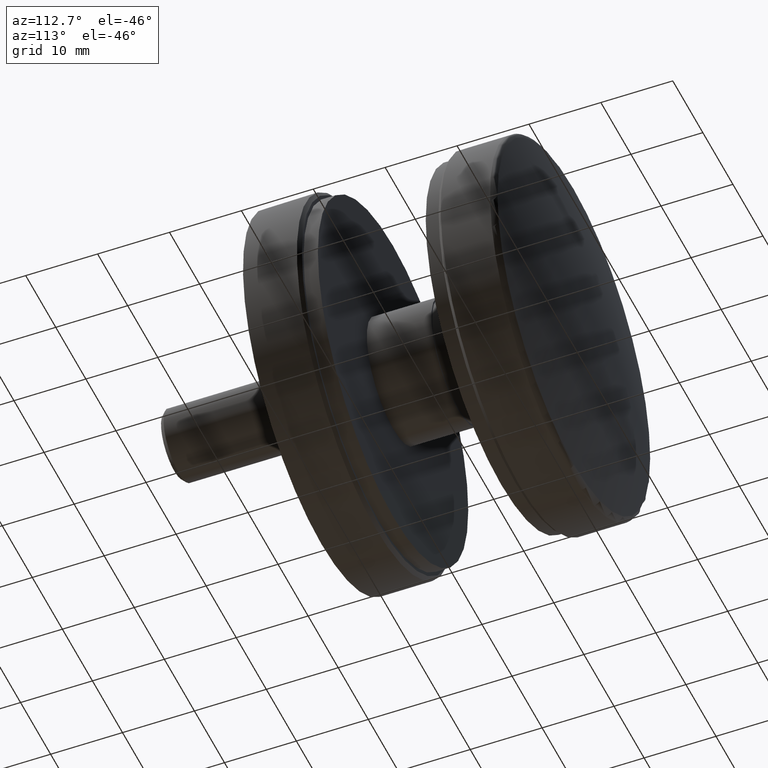
[diagram: clean part render]
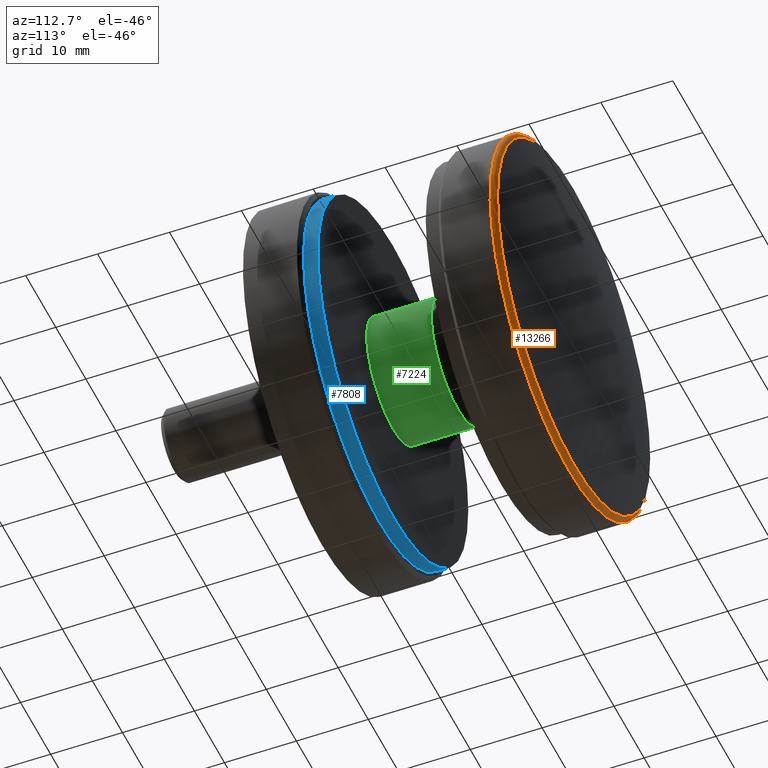
[diagram: same view with three faces highlighted in distinct colors, each labeled with its STEP entity id]
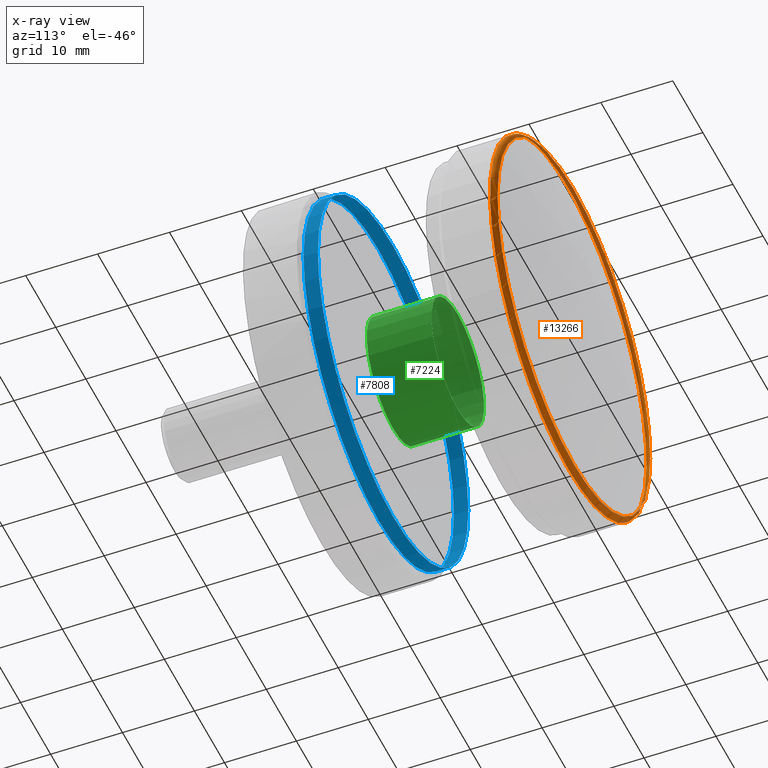
[diagram: x-ray of the same camera — body ghosted, the three highlighted faces saturated]
A machine part, auxiliary view with three faces highlighted in distinct colors.
The next image is the same camera in x-ray (body ghosted, the three faces saturated) — at least one of them is partly hidden behind the body in this view.
Their STEP definitions:

[orange] entity #13266 — the highlighted toroidal blend (fillet) surface has major radius 25.2 mm and minor (blend) radius 0.8 mm.
#1421 = FACE_OUTER_BOUND ( 'NONE', #4789, .T. ) ;
#2098 = DIRECTION ( 'NONE',  ( 0.000000000000000000, 0.000000000000000000, -1.000000000000000000 ) ) ;
#2125 = ORIENTED_EDGE ( 'NONE', *, *, #16718, .F. ) ;
#2263 = CARTESIAN_POINT ( 'NONE',  ( 0.000000000000000000, 16.14368109908169302, 0.000000000000000000 ) ) ;
#4151 = AXIS2_PLACEMENT_3D ( 'NONE', #7791, #16233, #10621 ) ;
#4789 = EDGE_LOOP ( 'NONE', ( #13959 ) ) ;
#5061 = CIRCLE ( 'NONE', #4151, 25.99999999999999645 ) ;
#7791 = CARTESIAN_POINT ( 'NONE',  ( 0.000000000000000000, 15.36369618043119445, 0.000000000000000000 ) ) ;
#9802 = FACE_OUTER_BOUND ( 'NONE', #15703, .T. ) ;
#10347 = CARTESIAN_POINT ( 'NONE',  ( 0.000000000000000000, 15.36369618043119445, 0.000000000000000000 ) ) ;
#10621 = DIRECTION ( 'NONE',  ( 0.000000000000000000, 0.000000000000000000, -1.000000000000000000 ) ) ;
#12125 = DIRECTION ( 'NONE',  ( -0.000000000000000000, -1.000000000000000000, -0.000000000000000000 ) ) ;
#12235 = TOROIDAL_SURFACE ( 'NONE', #14659, 25.19999999999999929, 0.7999999999999949374 ) ;
#13266 = ADVANCED_FACE ( 'NONE', ( #1421, #9802 ), #12235, .T. ) ;
#13959 = ORIENTED_EDGE ( 'NONE', *, *, #17820, .T. ) ;
#14147 = CIRCLE ( 'NONE', #17385, 25.37783004998528824 ) ;
#14659 = AXIS2_PLACEMENT_3D ( 'NONE', #10347, #14740, #2098 ) ;
#14740 = DIRECTION ( 'NONE',  ( -0.000000000000000000, -1.000000000000000000, -0.000000000000000000 ) ) ;
#14849 = DIRECTION ( 'NONE',  ( 0.000000000000000000, 0.000000000000000000, -1.000000000000000000 ) ) ;
#15534 = CARTESIAN_POINT ( 'NONE',  ( 0.000000000000000000, 15.36369618043119445, -25.99999999999999645 ) ) ;
#15703 = EDGE_LOOP ( 'NONE', ( #2125 ) ) ;
#16233 = DIRECTION ( 'NONE',  ( -0.000000000000000000, -1.000000000000000000, -0.000000000000000000 ) ) ;
#16718 = EDGE_CURVE ( 'NONE', #17870, #17870, #5061, .T. ) ;
#16765 = VERTEX_POINT ( 'NONE', #18198 ) ;
#17385 = AXIS2_PLACEMENT_3D ( 'NONE', #2263, #12125, #14849 ) ;
#17820 = EDGE_CURVE ( 'NONE', #16765, #16765, #14147, .T. ) ;
#17870 = VERTEX_POINT ( 'NONE', #15534 ) ;
#18198 = CARTESIAN_POINT ( 'NONE',  ( 0.000000000000000000, 16.14368109908169302, -25.37783004998528824 ) ) ;

[blue] entity #7808 — the highlighted cylindrical surface (bore or boss wall) has radius 25 mm, axis along (-0, -1, -0).
#1132 = VERTEX_POINT ( 'NONE', #6954 ) ;
#1417 = AXIS2_PLACEMENT_3D ( 'NONE', #10904, #9631, #10721 ) ;
#2485 = CARTESIAN_POINT ( 'NONE',  ( 0.000000000000000000, 1.000000000000000000, 25.00000000000000000 ) ) ;
#2856 = EDGE_LOOP ( 'NONE', ( #5717 ) ) ;
#2988 = AXIS2_PLACEMENT_3D ( 'NONE', #14076, #8325, #11338 ) ;
#3152 = CIRCLE ( 'NONE', #2988, 25.00000000000000000 ) ;
#3558 = FACE_OUTER_BOUND ( 'NONE', #2856, .T. ) ;
#3987 = FACE_OUTER_BOUND ( 'NONE', #15867, .T. ) ;
#5264 = VERTEX_POINT ( 'NONE', #2485 ) ;
#5717 = ORIENTED_EDGE ( 'NONE', *, *, #7797, .F. ) ;
#6954 = CARTESIAN_POINT ( 'NONE',  ( 0.000000000000000000, -1.000000000000000000, 25.00000000000000000 ) ) ;
#7797 = EDGE_CURVE ( 'NONE', #5264, #5264, #8212, .T. ) ;
#7808 = ADVANCED_FACE ( 'NONE', ( #3558, #3987 ), #15048, .T. ) ;
#8212 = CIRCLE ( 'NONE', #15328, 25.00000000000000000 ) ;
#8325 = DIRECTION ( 'NONE',  ( 0.000000000000000000, 1.000000000000000000, 0.000000000000000000 ) ) ;
#9631 = DIRECTION ( 'NONE',  ( -0.000000000000000000, -1.000000000000000000, -0.000000000000000000 ) ) ;
#10721 = DIRECTION ( 'NONE',  ( 0.000000000000000000, 0.000000000000000000, -1.000000000000000000 ) ) ;
#10845 = CARTESIAN_POINT ( 'NONE',  ( 0.000000000000000000, 1.000000000000000000, 0.000000000000000000 ) ) ;
#10904 = CARTESIAN_POINT ( 'NONE',  ( 0.000000000000000000, 1.000000000000000000, 0.000000000000000000 ) ) ;
#10963 = DIRECTION ( 'NONE',  ( 0.000000000000000000, 0.000000000000000000, 1.000000000000000000 ) ) ;
#11338 = DIRECTION ( 'NONE',  ( 0.000000000000000000, 0.000000000000000000, 1.000000000000000000 ) ) ;
#13517 = ORIENTED_EDGE ( 'NONE', *, *, #14367, .T. ) ;
#14076 = CARTESIAN_POINT ( 'NONE',  ( 0.000000000000000000, -1.000000000000000000, 0.000000000000000000 ) ) ;
#14367 = EDGE_CURVE ( 'NONE', #1132, #1132, #3152, .T. ) ;
#15048 = CYLINDRICAL_SURFACE ( 'NONE', #1417, 25.00000000000000000 ) ;
#15328 = AXIS2_PLACEMENT_3D ( 'NONE', #10845, #18070, #10963 ) ;
#15867 = EDGE_LOOP ( 'NONE', ( #13517 ) ) ;
#18070 = DIRECTION ( 'NONE',  ( 0.000000000000000000, 1.000000000000000000, 0.000000000000000000 ) ) ;

[green] entity #7224 — the highlighted cylindrical surface (bore or boss wall) has radius 8.75 mm, axis along (-0, -1, -0).
#2430 = VERTEX_POINT ( 'NONE', #3867 ) ;
#3116 = CYLINDRICAL_SURFACE ( 'NONE', #4088, 8.750000000000001776 ) ;
#3761 = FACE_OUTER_BOUND ( 'NONE', #4026, .T. ) ;
#3867 = CARTESIAN_POINT ( 'NONE',  ( 0.000000000000000000, 0.000000000000000000, 8.750000000000001776 ) ) ;
#4026 = EDGE_LOOP ( 'NONE', ( #17954 ) ) ;
#4088 = AXIS2_PLACEMENT_3D ( 'NONE', #9255, #9067, #6377 ) ;
#4189 = FACE_OUTER_BOUND ( 'NONE', #11184, .T. ) ;
#5853 = AXIS2_PLACEMENT_3D ( 'NONE', #12261, #6739, #16615 ) ;
#6377 = DIRECTION ( 'NONE',  ( 0.000000000000000000, 0.000000000000000000, -1.000000000000000000 ) ) ;
#6739 = DIRECTION ( 'NONE',  ( 0.000000000000000000, 1.000000000000000000, 0.000000000000000000 ) ) ;
#7224 = ADVANCED_FACE ( 'NONE', ( #4189, #3761 ), #3116, .T. ) ;
#8151 = EDGE_CURVE ( 'NONE', #12141, #12141, #12839, .T. ) ;
#9067 = DIRECTION ( 'NONE',  ( -0.000000000000000000, -1.000000000000000000, -0.000000000000000000 ) ) ;
#9255 = CARTESIAN_POINT ( 'NONE',  ( 0.000000000000000000, 9.000000000000000000, 0.000000000000000000 ) ) ;
#10054 = AXIS2_PLACEMENT_3D ( 'NONE', #11528, #12784, #11404 ) ;
#10144 = ORIENTED_EDGE ( 'NONE', *, *, #8151, .F. ) ;
#10484 = EDGE_CURVE ( 'NONE', #2430, #2430, #14455, .T. ) ;
#11184 = EDGE_LOOP ( 'NONE', ( #10144 ) ) ;
#11404 = DIRECTION ( 'NONE',  ( 0.000000000000000000, 0.000000000000000000, 1.000000000000000000 ) ) ;
#11528 = CARTESIAN_POINT ( 'NONE',  ( 0.000000000000000000, 0.000000000000000000, 0.000000000000000000 ) ) ;
#12141 = VERTEX_POINT ( 'NONE', #18135 ) ;
#12261 = CARTESIAN_POINT ( 'NONE',  ( 0.000000000000000000, 9.000000000000000000, 0.000000000000000000 ) ) ;
#12784 = DIRECTION ( 'NONE',  ( 0.000000000000000000, 1.000000000000000000, 0.000000000000000000 ) ) ;
#12839 = CIRCLE ( 'NONE', #5853, 8.750000000000001776 ) ;
#14455 = CIRCLE ( 'NONE', #10054, 8.750000000000001776 ) ;
#16615 = DIRECTION ( 'NONE',  ( 0.000000000000000000, 0.000000000000000000, 1.000000000000000000 ) ) ;
#17954 = ORIENTED_EDGE ( 'NONE', *, *, #10484, .T. ) ;
#18135 = CARTESIAN_POINT ( 'NONE',  ( 0.000000000000000000, 9.000000000000000000, 8.750000000000001776 ) ) ;